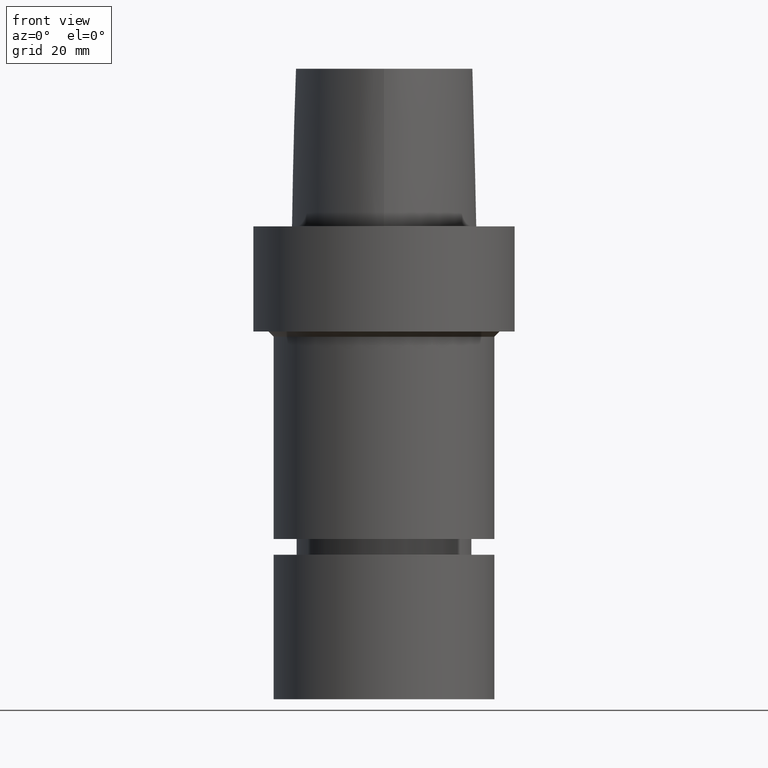
[diagram: clean part render]
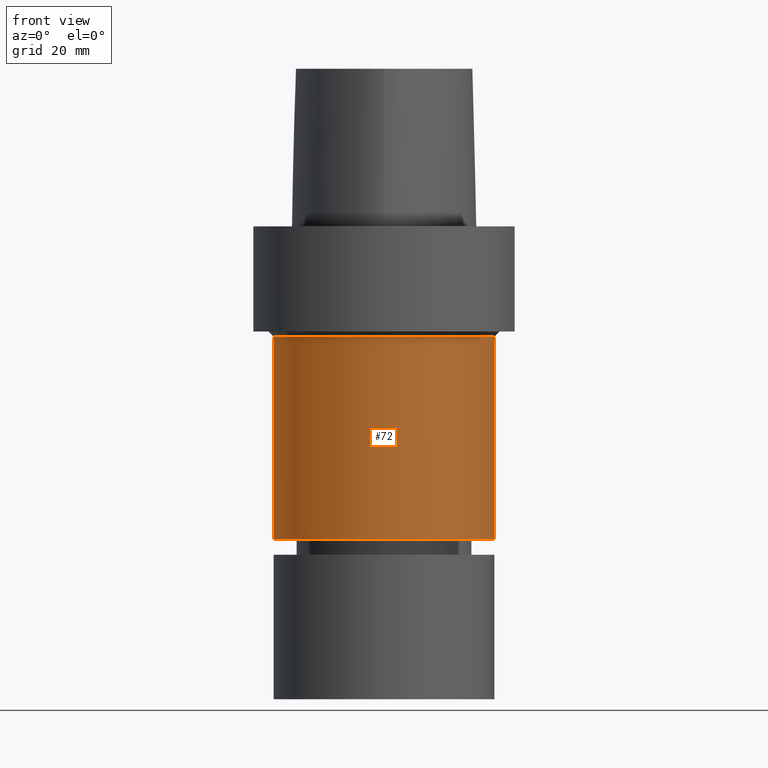
[diagram: same view with one face highlighted and labeled with its STEP entity id]
A machine part, front view. The second image highlights one B-rep face of the part: STEP entity #72.
In plain terms, the highlighted cylindrical surface (bore or boss wall) has radius 21 mm, axis along (0, 0, -1).
Its self-contained STEP definition (entity closure, byte-faithful):
#72=ADVANCED_FACE('Unnamed[1]',(#178,#179),#180,.T.);
#139=EDGE_CURVE('Unnamed[1]',#278,#278,#279,.T.);
#141=EDGE_CURVE('Unnamed[1]',#281,#281,#282,.T.);
#178=FACE_BOUND('',#320,.T.);
#179=FACE_BOUND('',#321,.T.);
#180=CYLINDRICAL_SURFACE('',#322,21.0000000000003);
#278=VERTEX_POINT('',#970);
#279=CIRCLE('',#971,21.0000000000003);
#281=VERTEX_POINT('',#974);
#282=CIRCLE('',#975,21.0000000000003);
#320=EDGE_LOOP('',(#996));
#321=EDGE_LOOP('',(#997));
#322=AXIS2_PLACEMENT_3D('',#998,#999,#1000);
#970=CARTESIAN_POINT('',(3.64332422746337E-015,21.0000000000003,-59.5));
#971=AXIS2_PLACEMENT_3D('',#1102,#1103,#1104);
#974=CARTESIAN_POINT('',(1.28587913910472E-015,21.0000000000003,-21.0));
#975=AXIS2_PLACEMENT_3D('',#1105,#1106,#1107);
#996=ORIENTED_EDGE('',*,*,#139,.F.);
#997=ORIENTED_EDGE('',*,*,#141,.T.);
#998=CARTESIAN_POINT('',(2.46460168328405E-015,4.92920336656809E-015,-40.25));
#999=DIRECTION('',(6.12323399573677E-017,1.22464679914735E-016,-1.0));
#1000=DIRECTION('',(-1.23259516440783E-032,1.0,1.22464679914735E-016));
#1102=CARTESIAN_POINT('',(3.64332422746337E-015,7.28664845492674E-015,-59.5));
#1103=DIRECTION('',(6.12323399573677E-017,1.22464679914735E-016,-1.0));
#1104=DIRECTION('',(-1.23259516440783E-032,1.0,1.22464679914735E-016));
#1105=CARTESIAN_POINT('',(1.28587913910472E-015,2.57175827820944E-015,-21.0));
#1106=DIRECTION('',(6.12323399573677E-017,1.22464679914735E-016,-1.0));
#1107=DIRECTION('',(-1.23259516440783E-032,1.0,1.22464679914735E-016));